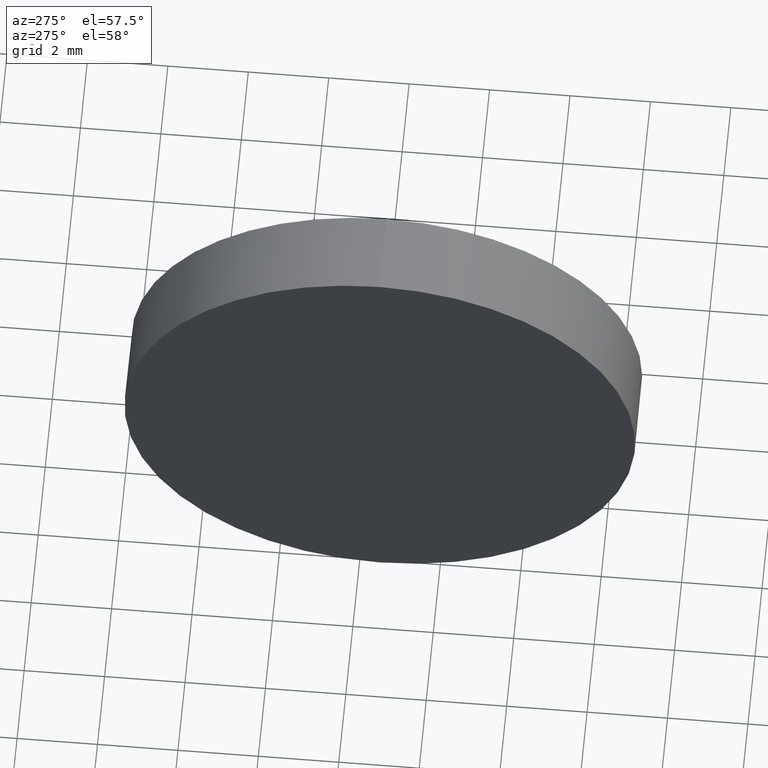
[diagram: clean part render]
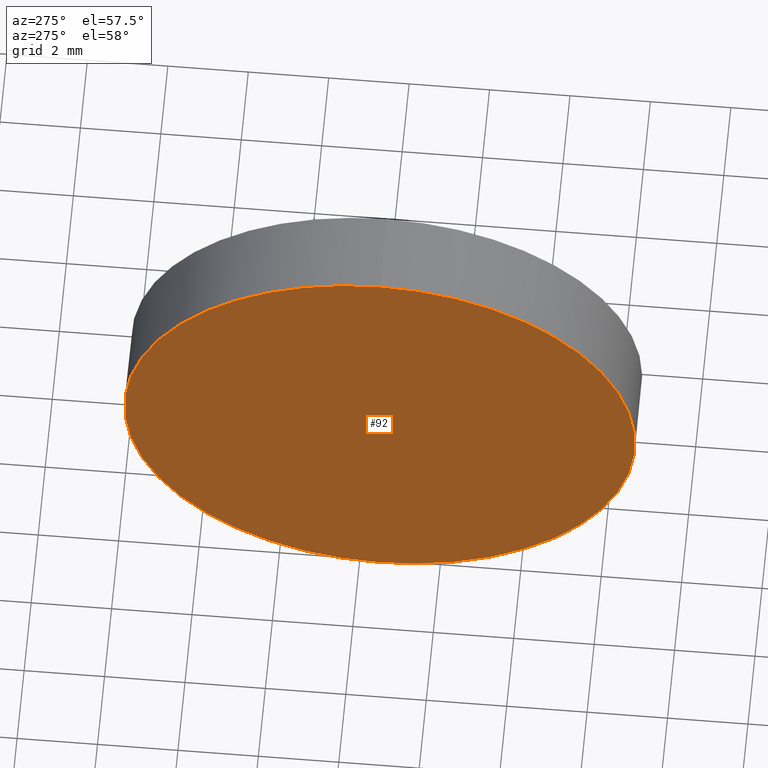
[diagram: same view with one face highlighted and labeled with its STEP entity id]
A machine part, auxiliary view. The second image highlights one B-rep face of the part: STEP entity #92.
In plain terms, the highlighted planar face has unit normal (1, 0, 0).
Its self-contained STEP definition (entity closure, byte-faithful):
#3 = CARTESIAN_POINT ( 'NONE',  ( 459.7612449843627500, 237.4846222433156100, -6.349999999999994300 ) ) ;
#14 = DIRECTION ( 'NONE',  ( 0.0000000000000000000, 0.0000000000000000000, 1.000000000000000000 ) ) ;
#28 = CARTESIAN_POINT ( 'NONE',  ( 459.7612449843627500, 237.4846222433156100, 0.0000000000000000000 ) ) ;
#43 = CIRCLE ( 'NONE', #110, 6.349999999999994300 ) ;
#52 = FACE_OUTER_BOUND ( 'NONE', #130, .T. ) ;
#56 = CIRCLE ( 'NONE', #175, 6.349999999999994300 ) ;
#62 = DIRECTION ( 'NONE',  ( -1.000000000000000000, -0.0000000000000000000, -0.0000000000000000000 ) ) ;
#70 = EDGE_CURVE ( 'NONE', #72, #163, #56, .T. ) ;
#72 = VERTEX_POINT ( 'NONE', #3 ) ;
#78 = DIRECTION ( 'NONE',  ( 1.000000000000000000, 0.0000000000000000000, 0.0000000000000000000 ) ) ;
#79 = PLANE ( 'NONE',  #97 ) ;
#92 = ADVANCED_FACE ( 'NONE', ( #52 ), #79, .F. ) ;
#93 = DIRECTION ( 'NONE',  ( 0.0000000000000000000, 0.0000000000000000000, 1.000000000000000000 ) ) ;
#95 = EDGE_CURVE ( 'NONE', #163, #72, #43, .T. ) ;
#97 = AXIS2_PLACEMENT_3D ( 'NONE', #100, #78, #121 ) ;
#99 = ORIENTED_EDGE ( 'NONE', *, *, #70, .T. ) ;
#100 = CARTESIAN_POINT ( 'NONE',  ( 459.7612449843627500, 237.4846222433156100, 0.0000000000000000000 ) ) ;
#110 = AXIS2_PLACEMENT_3D ( 'NONE', #134, #170, #93 ) ;
#121 = DIRECTION ( 'NONE',  ( 0.0000000000000000000, 0.0000000000000000000, -1.000000000000000000 ) ) ;
#130 = EDGE_LOOP ( 'NONE', ( #174, #99 ) ) ;
#134 = CARTESIAN_POINT ( 'NONE',  ( 459.7612449843627500, 237.4846222433156100, 0.0000000000000000000 ) ) ;
#152 = CARTESIAN_POINT ( 'NONE',  ( 459.7612449843627500, 237.4846222433156100, 6.349999999999994300 ) ) ;
#163 = VERTEX_POINT ( 'NONE', #152 ) ;
#170 = DIRECTION ( 'NONE',  ( -1.000000000000000000, -0.0000000000000000000, -0.0000000000000000000 ) ) ;
#174 = ORIENTED_EDGE ( 'NONE', *, *, #95, .T. ) ;
#175 = AXIS2_PLACEMENT_3D ( 'NONE', #28, #62, #14 ) ;